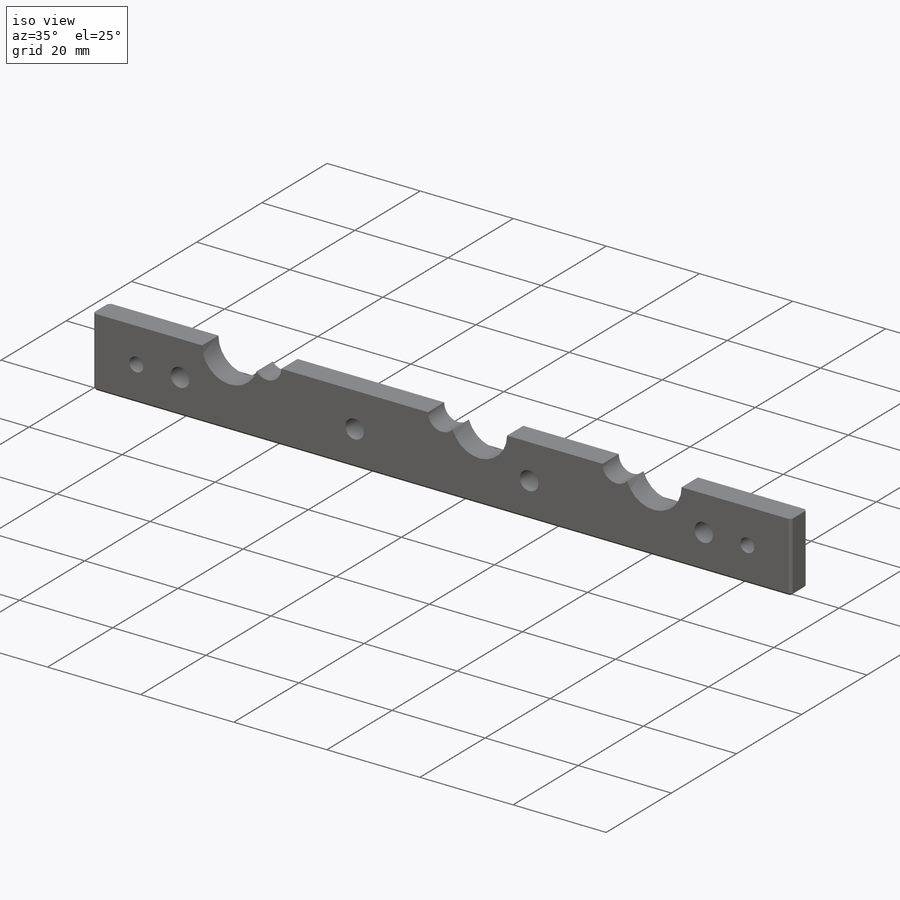
[diagram: iso view]
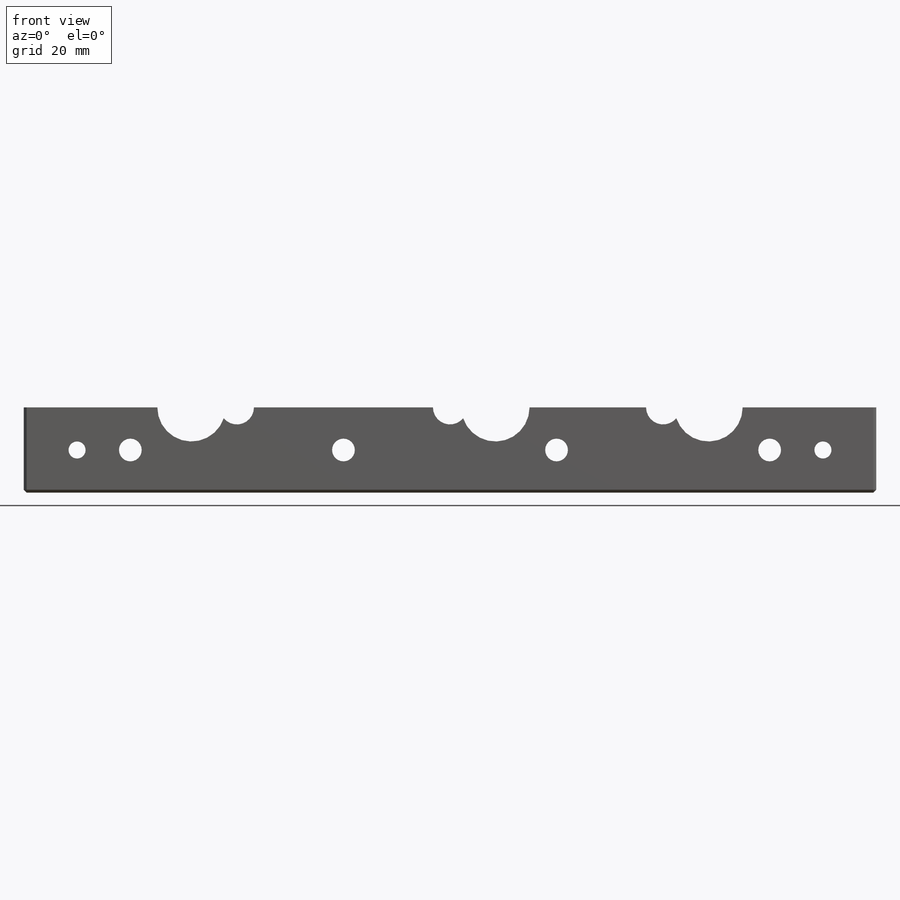
[diagram: front view]
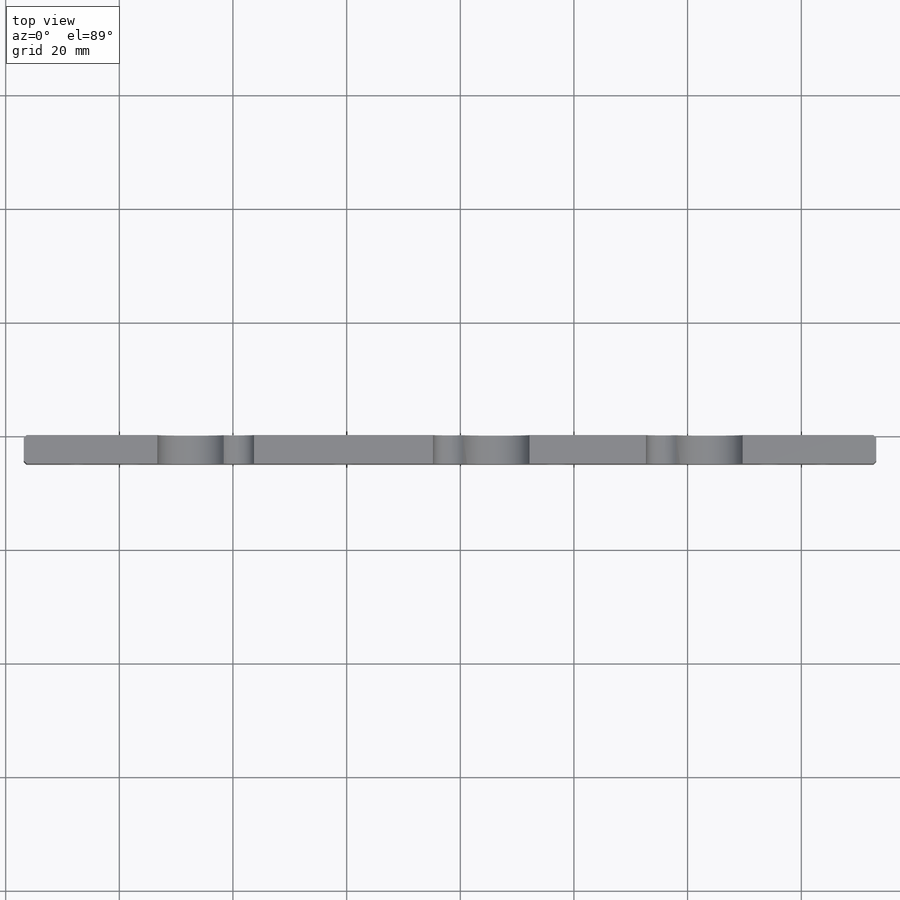
[diagram: top view]
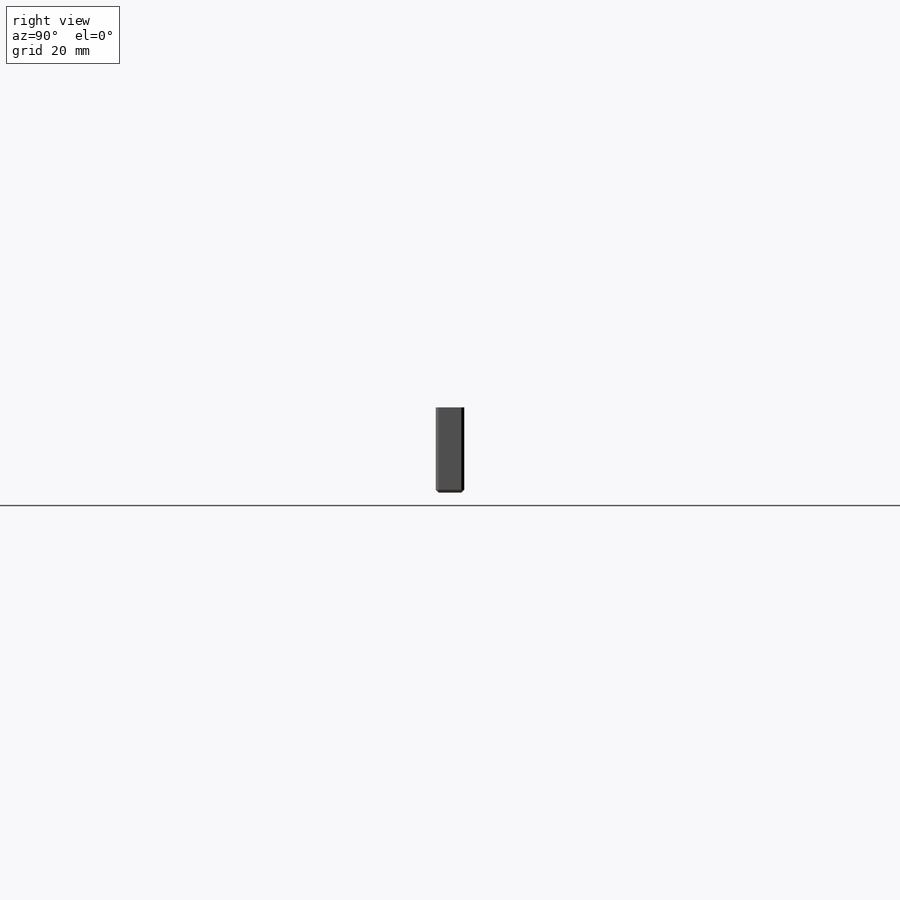
[diagram: right view]
SOLIDWORKS PART (.sldprt)
format: sldprt  version: not decoded by parser v0  size: 462,848 bytes
history: native  units: mm
features: sketch x25, hole x5, plane x4, mirror x4, material x1, extrude x1, cut_extrude x1 (+12 scaffold rows collapsed)
feature tree (53):
  scaffold x12  (default folders/planes/origin — collapsed)
  material  "Material <not specified>"
  sketch  "Sketch1"  dims[D1=150.0mm D2=30.0mm]
  extrude  "Boss-Extrude1"  Depth=5mm
  sketch  "Sketch2"
  sketch  "Sketch3"
  plane  "Plane1"
  hole  "Ø6.0mm Dowel Hole1"  Diameter=6mm Depth=25mm
  sketch  "3DSketch2"
  sketch  "Sketch4"  dims[hole-wizard template sketch: 47 standard entries collapsed; hole parameters kept: c15.Hole Depth=25.0mm c15.D3=~14.816244mm c15.Drill Angle=118.0deg]
  mirror  "Mirror1"
  sketch  "Sketch5"
  hole  "Ø4.0mm Dowel Hole1"  Diameter=4mm Depth=25mm
  sketch  "3DSketch3"
  sketch  "Sketch6"  dims[hole-wizard template sketch: 47 standard entries collapsed; hole parameters kept: c15.Hole Depth=25.0mm c15.D3=~14.816244mm c15.Drill Angle=118.0deg]
  sketch  "Sketch7"
  plane  "Plane2"
  mirror  "Mirror2"
  mirror  "Mirror3"
  sketch  "Sketch8"  dims[D1=5.5mm]
  sketch  "Sketch16"
  sketch  "Sketch17"
  sketch  "Sketch18"
  plane  "Plane3"
  sketch  "Sketch19"
  sketch  "Sketch20"
  plane  "Plane4"
  sketch  "Sketch22"
  hole  "Ø3.0mm Dowel Hole2"  Diameter=3mm Depth=25mm
  sketch  "3DSketch5"
  sketch  "Sketch23"  dims[hole-wizard template sketch: 47 standard entries collapsed; hole parameters kept: c15.Hole Depth=25.0mm c15.D3=~14.816244mm c15.Drill Angle=118.0deg]
  mirror  "Mirror5"
  sketch  "Sketch27"  dims[D1=5.0mm]
  hole  "Ø12.0mm Dowel Hole2"  Diameter=12mm Depth=25mm
  sketch  "3DSketch11"
  sketch  "Sketch29"  dims[hole-wizard template sketch: 46 standard entries collapsed; hole parameters kept: c15.Hole Dia.=12.0mm c15.Hole Depth=25.0mm c15.D3=~14.816244mm c15.Drill Angle=118.0deg]
  sketch  "Sketch30"  dims[D1=8.0mm]
  cut_extrude  "Cut-Extrude1"  Depth=10mm
  sketch  "Sketch31"  dims[D3=6.0mm D1=8.0mm D2=8.0mm]
  hole  "Ø12.0mm Dowel Hole3"  Diameter=12mm Depth=12.75mm
  sketch  "Sketch35"
  sketch  "Sketch32"  dims[hole-wizard template sketch: 46 standard entries collapsed; hole parameters kept: c15.Hole Dia.=12.0mm c15.Hole Depth=12.75mm c15.D3=~14.816244mm c15.Drill Angle=118.0deg]
decode coverage: 17 of 36 modeling features carry decoded parameters
note: ~ marks probable driven/reference dimensions
summary: Diameter pulled from absorbed wizard sketch
note: suppression state not decoded; provenance and decode notes live in map.json
